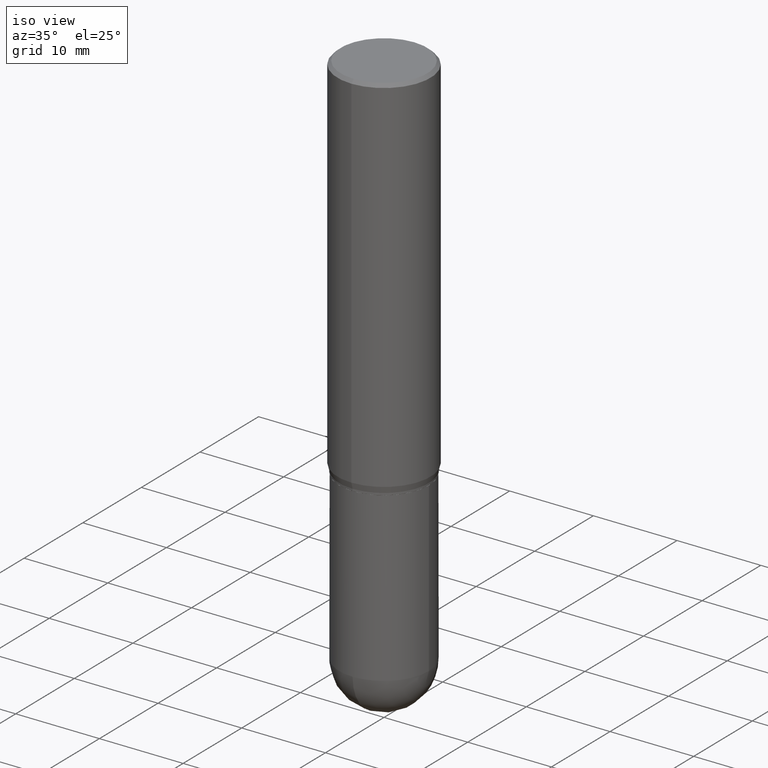
[diagram: clean part render]
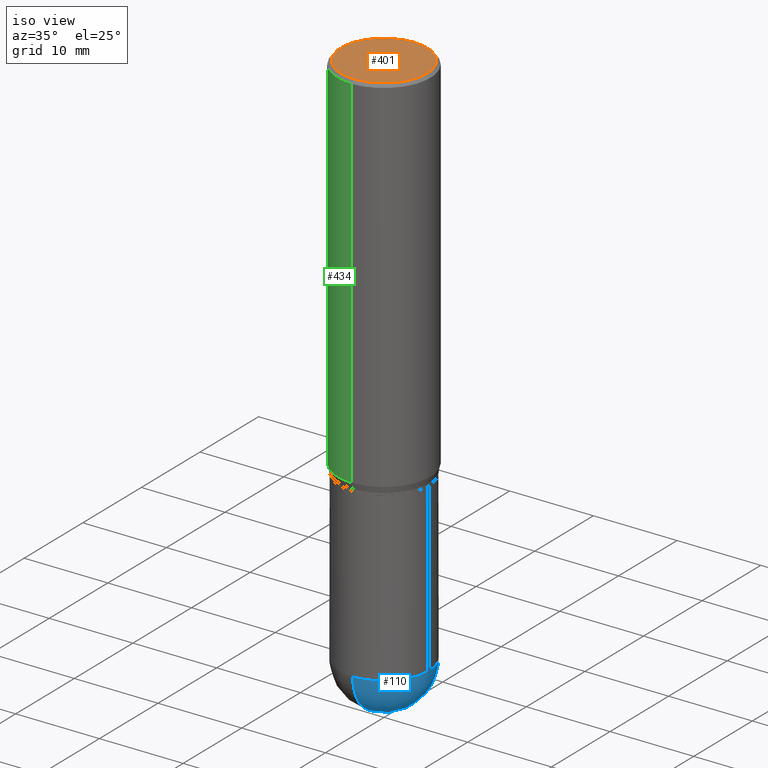
[diagram: same view with three faces highlighted in distinct colors, each labeled with its STEP entity id]
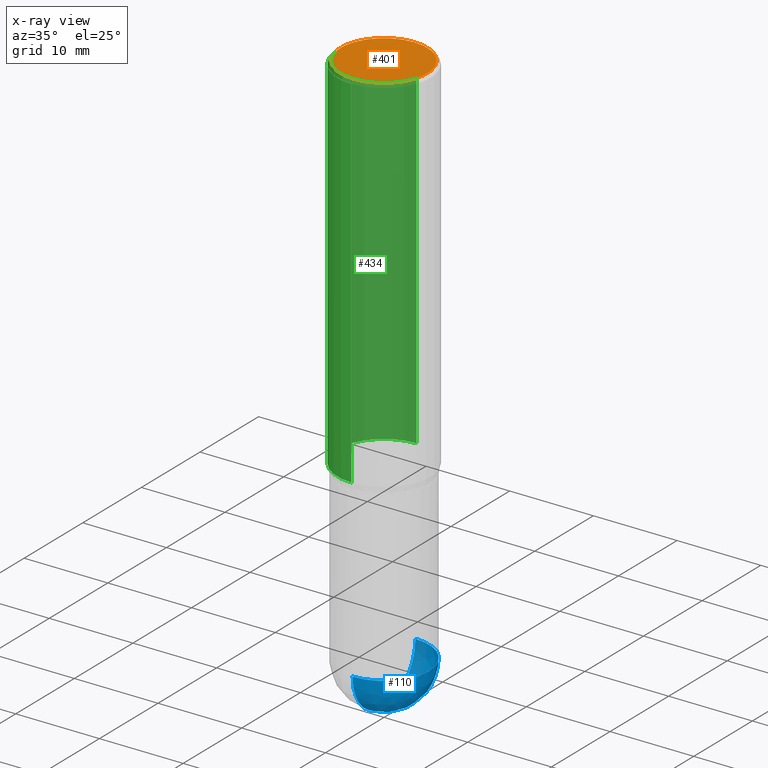
[diagram: x-ray of the same camera — body ghosted, the three highlighted faces saturated]
A machine part, iso view with three faces highlighted in distinct colors.
The next image is the same camera in x-ray (body ghosted, the three faces saturated) — at least one of them is partly hidden behind the body in this view.
Their STEP definitions:

[orange] entity #401 — the highlighted planar face has unit normal (0, -0, -1).
#64 = CARTESIAN_POINT ( 'NONE',  ( 1.422778645578576487E-15, 0.2037499999999999867, -7.900074826925052850E-16 ) ) ;
#89 = CIRCLE ( 'NONE', #204, 0.2037499999999999867 ) ;
#91 = DIRECTION ( 'NONE',  ( -2.445224538422357859E-29, 3.491831144182302259E-15, 1.000000000000000000 ) ) ;
#99 = CARTESIAN_POINT ( 'NONE',  ( 3.841295513378218841E-45, -5.485449330667966736E-31, -1.570937741307224074E-16 ) ) ;
#100 = AXIS2_PLACEMENT_3D ( 'NONE', #99, #258, #457 ) ;
#159 = VERTEX_POINT ( 'NONE', #328 ) ;
#202 = EDGE_CURVE ( 'NONE', #159, #469, #89, .T. ) ;
#204 = AXIS2_PLACEMENT_3D ( 'NONE', #326, #91, #486 ) ;
#214 = AXIS2_PLACEMENT_3D ( 'NONE', #64, #222, #217 ) ;
#217 = DIRECTION ( 'NONE',  ( 6.982962677686265922E-15, 1.000000000000000000, -3.491831144182302653E-15 ) ) ;
#222 = DIRECTION ( 'NONE',  ( 2.445224538422357299E-29, -3.491831144182302653E-15, -1.000000000000000000 ) ) ;
#248 = CIRCLE ( 'NONE', #100, 0.2037499999999999867 ) ;
#258 = DIRECTION ( 'NONE',  ( -2.445224538422357859E-29, 3.491831144182302259E-15, 1.000000000000000000 ) ) ;
#265 = CARTESIAN_POINT ( 'NONE',  ( -1.449280202029235538E-15, -0.2037499999999999867, 5.543668214964218588E-16 ) ) ;
#292 = ORIENTED_EDGE ( 'NONE', *, *, #393, .T. ) ;
#326 = CARTESIAN_POINT ( 'NONE',  ( 3.841295513378218841E-45, -5.485449330667966736E-31, -1.570937741307224074E-16 ) ) ;
#328 = CARTESIAN_POINT ( 'NONE',  ( 1.475150865661223764E-15, 0.2037499999999999867, -8.685543697578665257E-16 ) ) ;
#393 = EDGE_CURVE ( 'NONE', #469, #159, #248, .T. ) ;
#401 = ADVANCED_FACE ( 'NONE', ( #421 ), #416, .F. ) ;
#411 = ORIENTED_EDGE ( 'NONE', *, *, #202, .T. ) ;
#416 = PLANE ( 'NONE',  #214 ) ;
#421 = FACE_OUTER_BOUND ( 'NONE', #501, .T. ) ;
#457 = DIRECTION ( 'NONE',  ( -6.982962677686265133E-15, -1.000000000000000000, 3.491831144182301864E-15 ) ) ;
#469 = VERTEX_POINT ( 'NONE', #265 ) ;
#486 = DIRECTION ( 'NONE',  ( -6.982962677686265133E-15, -1.000000000000000000, 3.491831144182301864E-15 ) ) ;
#501 = EDGE_LOOP ( 'NONE', ( #411, #292 ) ) ;

[blue] entity #110 — the highlighted spherical surface has radius 5.3581 mm.
#4 = DIRECTION ( 'NONE',  ( 1.000000000000000000, -6.982962677686265133E-15, 0.000000000000000000 ) ) ;
#5 = ORIENTED_EDGE ( 'NONE', *, *, #102, .F. ) ;
#14 = FACE_OUTER_BOUND ( 'NONE', #366, .T. ) ;
#23 = ORIENTED_EDGE ( 'NONE', *, *, #29, .F. ) ;
#29 = EDGE_CURVE ( 'NONE', #388, #317, #98, .T. ) ;
#30 = DIRECTION ( 'NONE',  ( 6.982962677686265922E-15, 1.000000000000000000, 0.000000000000000000 ) ) ;
#69 = ORIENTED_EDGE ( 'NONE', *, *, #318, .T. ) ;
#93 = CARTESIAN_POINT ( 'NONE',  ( -1.498889901085869604E-15, -0.2109500000000089637, -2.539049999999999585 ) ) ;
#98 = CIRCLE ( 'NONE', #447, 0.2109500000000000541 ) ;
#102 = EDGE_CURVE ( 'NONE', #111, #388, #345, .T. ) ;
#103 = CARTESIAN_POINT ( 'NONE',  ( 6.191127839474132236E-29, -8.890879617617701491E-15, -2.539049999999999585 ) ) ;
#110 = ADVANCED_FACE ( 'NONE', ( #14 ), #282, .T. ) ;
#111 = VERTEX_POINT ( 'NONE', #93 ) ;
#112 = VERTEX_POINT ( 'NONE', #333 ) ;
#125 = DIRECTION ( 'NONE',  ( -2.445468806185136597E-29, 3.491481338843145583E-15, 1.000000000000000000 ) ) ;
#157 = CIRCLE ( 'NONE', #353, 0.2109500000000001096 ) ;
#216 = CARTESIAN_POINT ( 'NONE',  ( 6.209167572344372023E-29, -8.865045693389689499E-15, -2.539050000000000473 ) ) ;
#251 = DIRECTION ( 'NONE',  ( 1.000000000000000000, -6.982962677686265133E-15, 0.000000000000000000 ) ) ;
#268 = AXIS2_PLACEMENT_3D ( 'NONE', #342, #503, #30 ) ;
#282 = SPHERICAL_SURFACE ( 'NONE', #433, 0.2109500000000001096 ) ;
#284 = DIRECTION ( 'NONE',  ( 6.982962677686265133E-15, 1.000000000000000000, -2.590043132177541277E-15 ) ) ;
#317 = VERTEX_POINT ( 'NONE', #340 ) ;
#318 = EDGE_CURVE ( 'NONE', #112, #317, #404, .T. ) ;
#322 = DIRECTION ( 'NONE',  ( -1.000000000000000000, 6.982962677686265133E-15, -4.883557194083112340E-29 ) ) ;
#333 = CARTESIAN_POINT ( 'NONE',  ( 6.716019350574006308E-29, -9.614490643932656644E-15, -2.750000000000000000 ) ) ;
#340 = CARTESIAN_POINT ( 'NONE',  ( 1.473055976857980082E-15, 0.2109499999999912001, -2.539050000000000917 ) ) ;
#342 = CARTESIAN_POINT ( 'NONE',  ( 6.191127839474132236E-29, -8.890879617617701491E-15, -2.539049999999999585 ) ) ;
#345 = CIRCLE ( 'NONE', #463, 0.2109500000000000541 ) ;
#353 = AXIS2_PLACEMENT_3D ( 'NONE', #103, #462, #423 ) ;
#366 = EDGE_LOOP ( 'NONE', ( #398, #69, #23, #5 ) ) ;
#377 = EDGE_CURVE ( 'NONE', #112, #111, #157, .T. ) ;
#388 = VERTEX_POINT ( 'NONE', #460 ) ;
#398 = ORIENTED_EDGE ( 'NONE', *, *, #377, .F. ) ;
#404 = CIRCLE ( 'NONE', #268, 0.2109500000000001096 ) ;
#423 = DIRECTION ( 'NONE',  ( -7.105427357601001070E-15, -1.000000000000000000, 0.000000000000000000 ) ) ;
#433 = AXIS2_PLACEMENT_3D ( 'NONE', #446, #322, #284 ) ;
#440 = DIRECTION ( 'NONE',  ( -2.445468806185136597E-29, 3.491481338843145583E-15, 1.000000000000000000 ) ) ;
#446 = CARTESIAN_POINT ( 'NONE',  ( 6.191127839474132236E-29, -8.890879617617701491E-15, -2.539049999999999585 ) ) ;
#447 = AXIS2_PLACEMENT_3D ( 'NONE', #509, #440, #4 ) ;
#460 = CARTESIAN_POINT ( 'NONE',  ( 0.2109500000000000541, -8.960624995040515044E-15, -2.539050000000000473 ) ) ;
#462 = DIRECTION ( 'NONE',  ( -1.000000000000000000, 7.105427357601001070E-15, -4.926315508542082329E-29 ) ) ;
#463 = AXIS2_PLACEMENT_3D ( 'NONE', #216, #125, #251 ) ;
#503 = DIRECTION ( 'NONE',  ( 1.000000000000000000, -6.982962677686265922E-15, 4.883557194083112340E-29 ) ) ;
#509 = CARTESIAN_POINT ( 'NONE',  ( 6.209167572344372023E-29, -8.865045693389689499E-15, -2.539050000000000473 ) ) ;

[green] entity #434 — the highlighted cylindrical surface (partial cylindrical patch) has radius 5.5562 mm, axis along (-0, 0, 1).
#3 = DIRECTION ( 'NONE',  ( -2.445224538422357859E-29, 3.491831144182302259E-15, 1.000000000000000000 ) ) ;
#6 = CARTESIAN_POINT ( 'NONE',  ( -1.527523085743870054E-15, -0.2187500000000000555, -0.01499999999999939403 ) ) ;
#20 = DIRECTION ( 'NONE',  ( -2.445224538422357859E-29, 3.491831144182302259E-15, 1.000000000000000000 ) ) ;
#32 = AXIS2_PLACEMENT_3D ( 'NONE', #246, #403, #168 ) ;
#39 = FACE_OUTER_BOUND ( 'NONE', #475, .T. ) ;
#43 = DIRECTION ( 'NONE',  ( -6.982962677686265133E-15, -1.000000000000000000, 3.491831144182302259E-15 ) ) ;
#48 = CARTESIAN_POINT ( 'NONE',  ( 1.554312234475260769E-15, 0.2187499999999940603, -1.710890003700963558 ) ) ;
#87 = EDGE_CURVE ( 'NONE', #186, #266, #494, .T. ) ;
#90 = AXIS2_PLACEMENT_3D ( 'NONE', #195, #3, #43 ) ;
#101 = CARTESIAN_POINT ( 'NONE',  ( 1.554312234475260966E-15, 0.2187499999999999167, -0.01500000000000092232 ) ) ;
#127 = CARTESIAN_POINT ( 'NONE',  ( -1.527523085743870449E-15, -0.2187500000000000000, 7.638380627898786315E-16 ) ) ;
#132 = LINE ( 'NONE', #127, #395 ) ;
#144 = DIRECTION ( 'NONE',  ( -6.982962677686265133E-15, -1.000000000000000000, 3.492862791899308071E-15 ) ) ;
#156 = EDGE_CURVE ( 'NONE', #186, #381, #238, .T. ) ;
#168 = DIRECTION ( 'NONE',  ( -6.982962677686265133E-15, -1.000000000000000000, 3.746534391310989557E-15 ) ) ;
#174 = CARTESIAN_POINT ( 'NONE',  ( 1.554312234475218762E-15, 0.2187500000000000000, -7.638380627898786315E-16 ) ) ;
#176 = CARTESIAN_POINT ( 'NONE',  ( -1.527523085743828442E-15, -0.2187500000000059397, -1.710890003700962003 ) ) ;
#180 = ORIENTED_EDGE ( 'NONE', *, *, #87, .F. ) ;
#186 = VERTEX_POINT ( 'NONE', #48 ) ;
#195 = CARTESIAN_POINT ( 'NONE',  ( 0.000000000000000000, 0.000000000000000000, 0.000000000000000000 ) ) ;
#210 = EDGE_CURVE ( 'NONE', #381, #451, #132, .T. ) ;
#238 = CIRCLE ( 'NONE', #32, 0.2187500000000000000 ) ;
#246 = CARTESIAN_POINT ( 'NONE',  ( 4.183510219591112166E-29, -5.974138999193196321E-15, -1.710890003700962669 ) ) ;
#263 = EDGE_CURVE ( 'NONE', #266, #451, #499, .T. ) ;
#266 = VERTEX_POINT ( 'NONE', #101 ) ;
#271 = ORIENTED_EDGE ( 'NONE', *, *, #210, .T. ) ;
#339 = ORIENTED_EDGE ( 'NONE', *, *, #156, .T. ) ;
#361 = VECTOR ( 'NONE', #368, 39.37007874015748143 ) ;
#368 = DIRECTION ( 'NONE',  ( -2.445224538422357859E-29, 3.491831144182302653E-15, 1.000000000000000000 ) ) ;
#374 = CARTESIAN_POINT ( 'NONE',  ( 3.667836807633575149E-31, -5.237746716273508633E-17, -0.01500000000000015730 ) ) ;
#379 = ORIENTED_EDGE ( 'NONE', *, *, #263, .F. ) ;
#381 = VERTEX_POINT ( 'NONE', #176 ) ;
#395 = VECTOR ( 'NONE', #443, 39.37007874015748143 ) ;
#403 = DIRECTION ( 'NONE',  ( -2.445224538422357859E-29, 3.491831144182302259E-15, 1.000000000000000000 ) ) ;
#434 = ADVANCED_FACE ( 'NONE', ( #39 ), #474, .T. ) ;
#443 = DIRECTION ( 'NONE',  ( -2.445224538422357859E-29, 3.491831144182302653E-15, 1.000000000000000000 ) ) ;
#451 = VERTEX_POINT ( 'NONE', #6 ) ;
#474 = CYLINDRICAL_SURFACE ( 'NONE', #90, 0.2187500000000000000 ) ;
#475 = EDGE_LOOP ( 'NONE', ( #180, #339, #271, #379 ) ) ;
#481 = AXIS2_PLACEMENT_3D ( 'NONE', #374, #20, #144 ) ;
#494 = LINE ( 'NONE', #174, #361 ) ;
#499 = CIRCLE ( 'NONE', #481, 0.2187500000000000000 ) ;